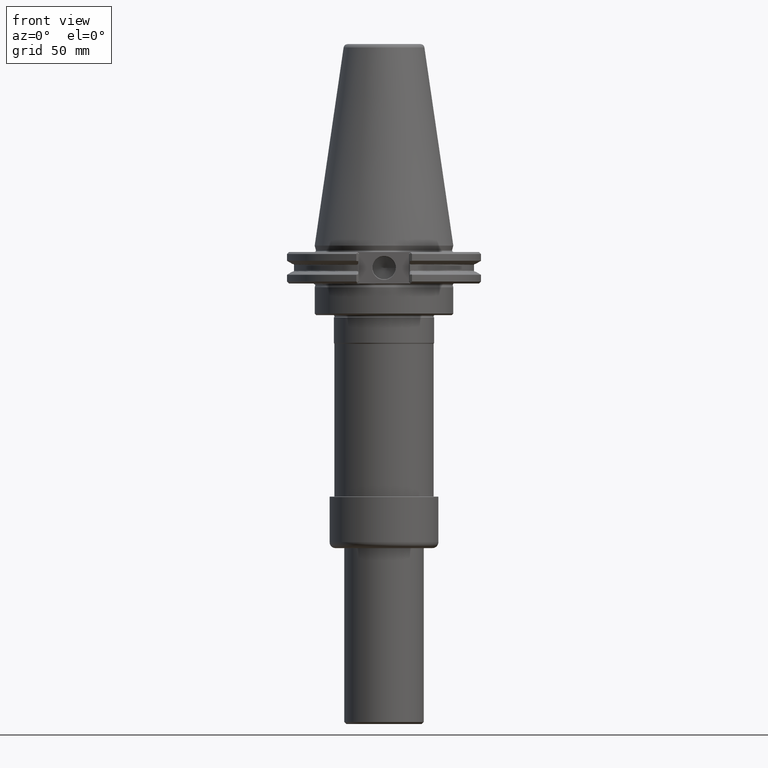
[diagram: clean part render]
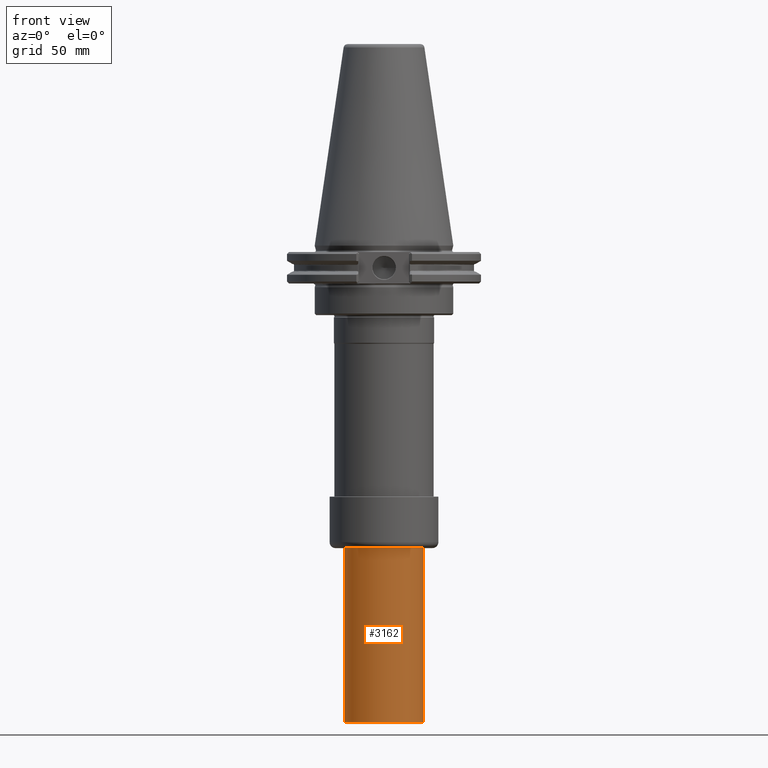
[diagram: same view with one face highlighted and labeled with its STEP entity id]
A machine part, front view. The second image highlights one B-rep face of the part: STEP entity #3162.
In plain terms, the highlighted cylindrical surface (bore or boss wall) has radius 20 mm, axis along (0, 0, 1).
Its self-contained STEP definition (entity closure, byte-faithful):
#295=CYLINDRICAL_SURFACE('',#3429,20.);
#816=ORIENTED_EDGE('',*,*,#1122,.F.);
#817=ORIENTED_EDGE('',*,*,#1114,.T.);
#1114=EDGE_CURVE('',#1320,#1320,#1452,.T.);
#1122=EDGE_CURVE('',#1328,#1328,#1460,.T.);
#1320=VERTEX_POINT('',#4899);
#1328=VERTEX_POINT('',#4922);
#1452=CIRCLE('',#3413,20.);
#1460=CIRCLE('',#3428,20.);
#1657=EDGE_LOOP('',(#816));
#1658=EDGE_LOOP('',(#817));
#1891=FACE_BOUND('',#1657,.T.);
#1892=FACE_BOUND('',#1658,.T.);
#3162=ADVANCED_FACE('',(#1891,#1892),#295,.T.);
#3413=AXIS2_PLACEMENT_3D('',#4898,#3988,#3989);
#3428=AXIS2_PLACEMENT_3D('',#4921,#4018,#4019);
#3429=AXIS2_PLACEMENT_3D('',#4923,#4020,#4021);
#3988=DIRECTION('',(0.,0.,1.));
#3989=DIRECTION('',(1.,0.,0.));
#4018=DIRECTION('',(0.,0.,1.));
#4019=DIRECTION('',(1.,0.,0.));
#4020=DIRECTION('',(0.,0.,1.));
#4021=DIRECTION('',(1.,0.,0.));
#4898=CARTESIAN_POINT('',(0.,-4.44089209850061E-16,-240.));
#4899=CARTESIAN_POINT('',(20.,-4.44089209850061E-16,-240.));
#4921=CARTESIAN_POINT('',(0.,-4.44089209850061E-16,-151.981107129089));
#4922=CARTESIAN_POINT('',(20.,-4.44089209850061E-16,-151.981107129089));
#4923=CARTESIAN_POINT('',(0.,-4.44089209850061E-16,-157.4));